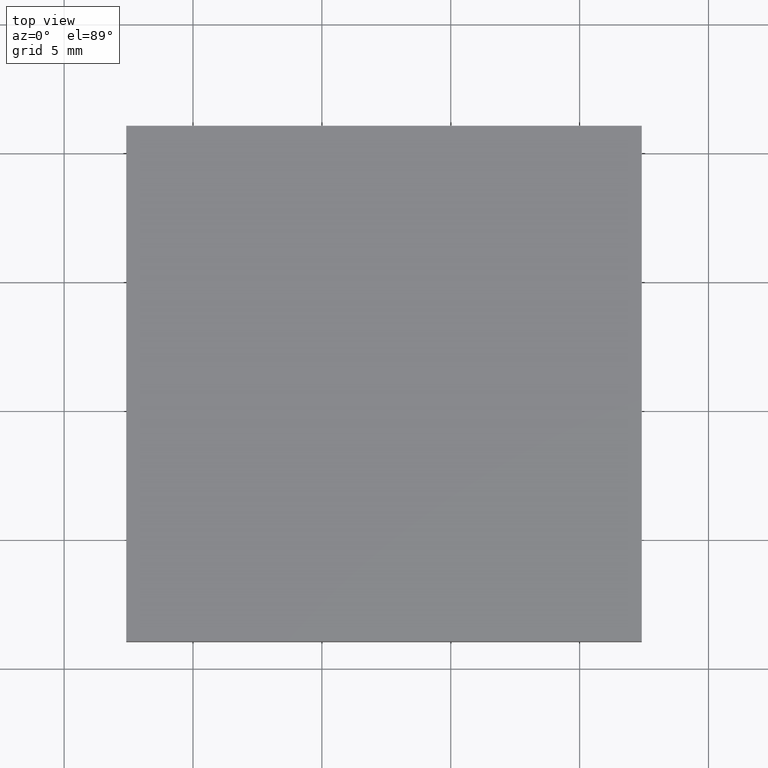
[diagram: clean part render]
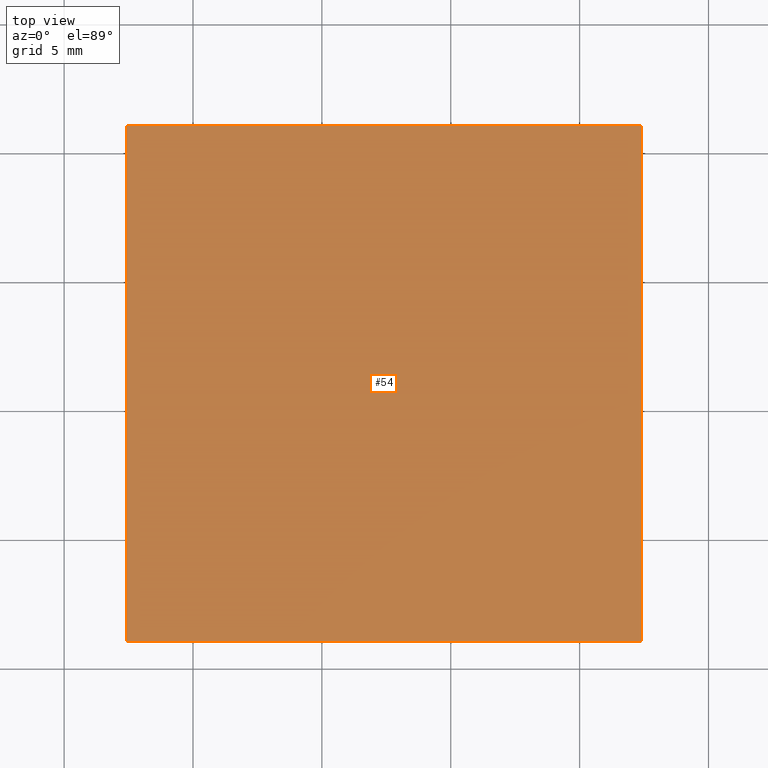
[diagram: same view with one face highlighted and labeled with its STEP entity id]
A machine part, top view. The second image highlights one B-rep face of the part: STEP entity #54.
In plain terms, the highlighted planar face has unit normal (-0, 0, 1).
Its self-contained STEP definition (entity closure, byte-faithful):
#3 = LINE ( 'NONE', #81, #89 ) ;
#11 = EDGE_CURVE ( 'NONE', #69, #56, #146, .T. ) ;
#21 = EDGE_LOOP ( 'NONE', ( #160, #100, #132, #34 ) ) ;
#28 = VERTEX_POINT ( 'NONE', #55 ) ;
#34 = ORIENTED_EDGE ( 'NONE', *, *, #135, .T. ) ;
#46 = DIRECTION ( 'NONE',  ( -1.000000000000000000, -3.469446951953617100E-016, -0.0000000000000000000 ) ) ;
#54 = ADVANCED_FACE ( 'NONE', ( #172 ), #198, .T. ) ;
#55 = CARTESIAN_POINT ( 'NONE',  ( 82.40998929485570600, 51.04216122301769300, 2.299999999999999800 ) ) ;
#56 = VERTEX_POINT ( 'NONE', #105 ) ;
#67 = VECTOR ( 'NONE', #153, 1000.000000000000000 ) ;
#69 = VERTEX_POINT ( 'NONE', #184 ) ;
#74 = AXIS2_PLACEMENT_3D ( 'NONE', #196, #95, #151 ) ;
#78 = CARTESIAN_POINT ( 'NONE',  ( 82.40998929485570600, 51.04216122301769300, 2.299999999999999800 ) ) ;
#81 = CARTESIAN_POINT ( 'NONE',  ( 62.40998929485572700, 51.04216122301768600, 2.299999999999999800 ) ) ;
#89 = VECTOR ( 'NONE', #46, 1000.000000000000000 ) ;
#90 = VECTOR ( 'NONE', #145, 1000.000000000000000 ) ;
#95 = DIRECTION ( 'NONE',  ( -0.0000000000000000000, 0.0000000000000000000, 1.000000000000000000 ) ) ;
#100 = ORIENTED_EDGE ( 'NONE', *, *, #173, .T. ) ;
#105 = CARTESIAN_POINT ( 'NONE',  ( 62.40998929485574100, 31.04216122301770000, 2.299999999999999800 ) ) ;
#117 = VECTOR ( 'NONE', #183, 1000.000000000000000 ) ;
#132 = ORIENTED_EDGE ( 'NONE', *, *, #190, .T. ) ;
#133 = CARTESIAN_POINT ( 'NONE',  ( 62.40998929485572700, 51.04216122301768600, 2.299999999999999800 ) ) ;
#135 = EDGE_CURVE ( 'NONE', #28, #69, #3, .T. ) ;
#145 = DIRECTION ( 'NONE',  ( 6.938893903907234300E-016, -1.000000000000000000, 0.0000000000000000000 ) ) ;
#146 = LINE ( 'NONE', #133, #90 ) ;
#150 = VERTEX_POINT ( 'NONE', #167 ) ;
#151 = DIRECTION ( 'NONE',  ( 1.000000000000000000, 0.0000000000000000000, 0.0000000000000000000 ) ) ;
#153 = DIRECTION ( 'NONE',  ( 1.000000000000000000, 0.0000000000000000000, 0.0000000000000000000 ) ) ;
#157 = LINE ( 'NONE', #181, #67 ) ;
#160 = ORIENTED_EDGE ( 'NONE', *, *, #11, .T. ) ;
#167 = CARTESIAN_POINT ( 'NONE',  ( 82.40998929485572000, 31.04216122301770000, 2.299999999999999800 ) ) ;
#172 = FACE_OUTER_BOUND ( 'NONE', #21, .T. ) ;
#173 = EDGE_CURVE ( 'NONE', #56, #150, #157, .T. ) ;
#174 = LINE ( 'NONE', #78, #117 ) ;
#181 = CARTESIAN_POINT ( 'NONE',  ( 62.40998929485574100, 31.04216122301770000, 2.299999999999999800 ) ) ;
#183 = DIRECTION ( 'NONE',  ( -6.938893903907232300E-016, 1.000000000000000000, -0.0000000000000000000 ) ) ;
#184 = CARTESIAN_POINT ( 'NONE',  ( 62.40998929485572700, 51.04216122301768600, 2.299999999999999800 ) ) ;
#190 = EDGE_CURVE ( 'NONE', #150, #28, #174, .T. ) ;
#196 = CARTESIAN_POINT ( 'NONE',  ( 0.0000000000000000000, 0.0000000000000000000, 2.299999999999999800 ) ) ;
#198 = PLANE ( 'NONE',  #74 ) ;